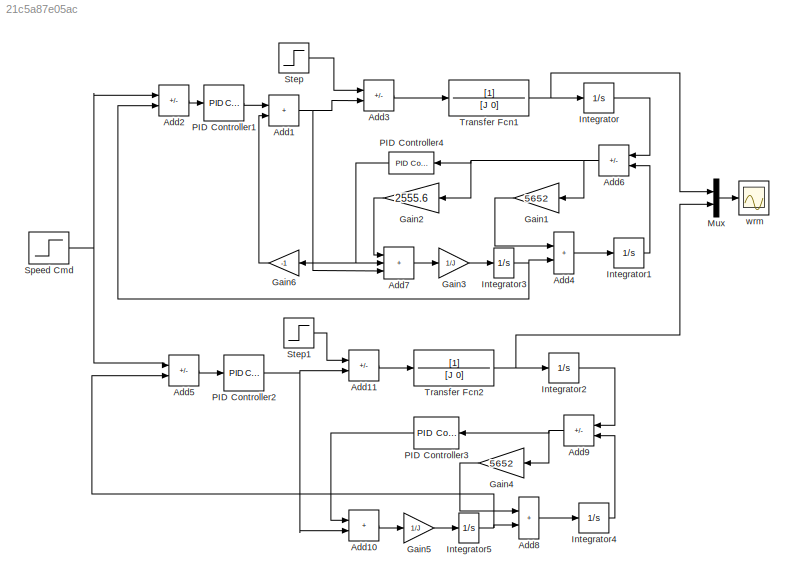
MODEL slx_21c5a87e05ac
KIND model
CONFIG AbsTol = auto
CONFIG EnableMultiTasking = off
CONFIG FixedStep = 0.00001
CONFIG MaxStep = auto
CONFIG MinStep = auto
CONFIG RelTol = 1e-3
CONFIG SampleTimeConstraint = Unconstrained
CONFIG SolverName = FixedStepAuto
CONFIG StartTime = 0.0
CONFIG StopTime = 0.2
BLOCK [Sum] Add1
  IconShape = rectangular
BLOCK [Sum] Add10
  IconShape = rectangular
BLOCK [Sum] Add11
  IconShape = rectangular
  Inputs = -+
BLOCK [Sum] Add2
  IconShape = rectangular
  Inputs = +-
BLOCK [Sum] Add3
  IconShape = rectangular
  Inputs = -+
BLOCK [Sum] Add4
  IconShape = rectangular
BLOCK [Sum] Add5
  IconShape = rectangular
  Inputs = +-
BLOCK [Sum] Add6
  IconShape = rectangular
  Inputs = +-
  NameLocation = top
BLOCK [Sum] Add7
  IconShape = rectangular
  Inputs = +++
BLOCK [Sum] Add8
  IconShape = rectangular
BLOCK [Sum] Add9
  IconShape = rectangular
  Inputs = +-
  NameLocation = top
BLOCK [Gain] Gain1
  Gain = 5652
  NameLocation = top
BLOCK [Gain] Gain2
  Gain = 2555.6
  NameLocation = top
BLOCK [Gain] Gain3
  Gain = 1/J
BLOCK [Gain] Gain4
  Gain = 5652
  NameLocation = top
BLOCK [Gain] Gain5
  Gain = 1/J
BLOCK [Gain] Gain6
  Gain = -1
  NameLocation = top
BLOCK [Integrator] Integrator
BLOCK [Integrator] Integrator1
BLOCK [Integrator] Integrator2
BLOCK [Integrator] Integrator3
BLOCK [Integrator] Integrator4
BLOCK [Integrator] Integrator5
BLOCK [Mux] Mux
  DisplayOption = bar
  Inputs = 2
BLOCK [Reference] PID Controller1  REF=slpidlib/PID Controller
  LibrarySourceBlock = simulink/Continuous/PID Controller
  SourceBlock = slpidlib/PID Controller
  SourceType = PID 1dof
BLOCK [Reference] PID Controller2  REF=slpidlib/PID Controller
  LibrarySourceBlock = simulink/Continuous/PID Controller
  SourceBlock = slpidlib/PID Controller
  SourceType = PID 1dof
BLOCK [Reference] PID Controller3  REF=slpidlib/PID Controller
  LibrarySourceBlock = simulink/Continuous/PID Controller
  NameLocation = top
  SourceBlock = slpidlib/PID Controller
  SourceType = PID 1dof
BLOCK [Reference] PID Controller4  REF=slpidlib/PID Controller
  LibrarySourceBlock = simulink/Continuous/PID Controller
  NameLocation = top
  SourceBlock = slpidlib/PID Controller
  SourceType = PID 1dof
BLOCK [Step] Speed Cmd
  After = 100
  SampleTime = 0
  Time = 0
BLOCK [Step] Step
  After = 0.5
  SampleTime = 0
  Time = 0.1
BLOCK [Step] Step1
  After = 0.5
  SampleTime = 0
  Time = 0.1
BLOCK [TransferFcn] Transfer Fcn1
  Denominator = [J 0]
BLOCK [TransferFcn] Transfer Fcn2
  Denominator = [J 0]
BLOCK [Scope] wrm
  Floating = off
  NumInputPorts = 1
  ScopeSpecificationString = Simulink.scopes.TimeScopeBlockCfg('CurrentConfiguration', extmgr.ConfigurationSet(extmgr.Configuration('Core','General UI',true,'FigureColor',[1 1 1]),extmgr.Configuration('Core','Source UI',true),extmgr.Configuration('Sources','WiredSimulink',true,'DataLoggingVariableName','ScopeData1'),extmgr.Configuration('Visuals','Time Domain',true,'SerializedDisplays',{struct('MinYLimReal','92.83414','MaxYLi...<+1803ch>
LINE Add10:1 -> Gain5:1
LINE Add11:1 -> Transfer Fcn2:1
NET Add1:1 -> Add3:2, Add7:3
LINE Add2:1 -> PID Controller1:1
LINE Add3:1 -> Transfer Fcn1:1
LINE Add4:1 -> Integrator1:1
LINE Add5:1 -> PID Controller2:1
NET Add6:1 -> Gain1:1, Gain2:1, PID Controller4:1
LINE Add7:1 -> Gain3:1
LINE Add8:1 -> Integrator4:1
NET Add9:1 -> Gain4:1, PID Controller3:1
LINE Gain1:1 -> Add4:1
LINE Gain2:1 -> Add7:1
LINE Gain3:1 -> Integrator3:1
LINE Gain4:1 -> Add8:1
LINE Gain5:1 -> Integrator5:1
LINE Gain6:1 -> Add1:2
LINE Integrator1:1 -> Add6:2
LINE Integrator2:1 -> Add9:1
NET Integrator3:1 -> Add2:2, Add4:2
LINE Integrator4:1 -> Add9:2
NET Integrator5:1 -> Add5:2, Add8:2
LINE Integrator:1 -> Add6:1
LINE Mux:1 -> wrm:1
LINE PID Controller1:1 -> Add1:1
NET PID Controller2:1 -> Add10:2, Add11:2
LINE PID Controller3:1 -> Add10:1
NET PID Controller4:1 -> Add7:2, Gain6:1
NET Speed Cmd:1 -> Add2:1, Add5:1
LINE Step1:1 -> Add11:1
LINE Step:1 -> Add3:1
NET Transfer Fcn1:1 -> Integrator:1, Mux:1
NET Transfer Fcn2:1 -> Integrator2:1, Mux:2
note: NET lines group one-source signal fan-out (src -> all destinations, sorted); 1:1 wires keep LINE
